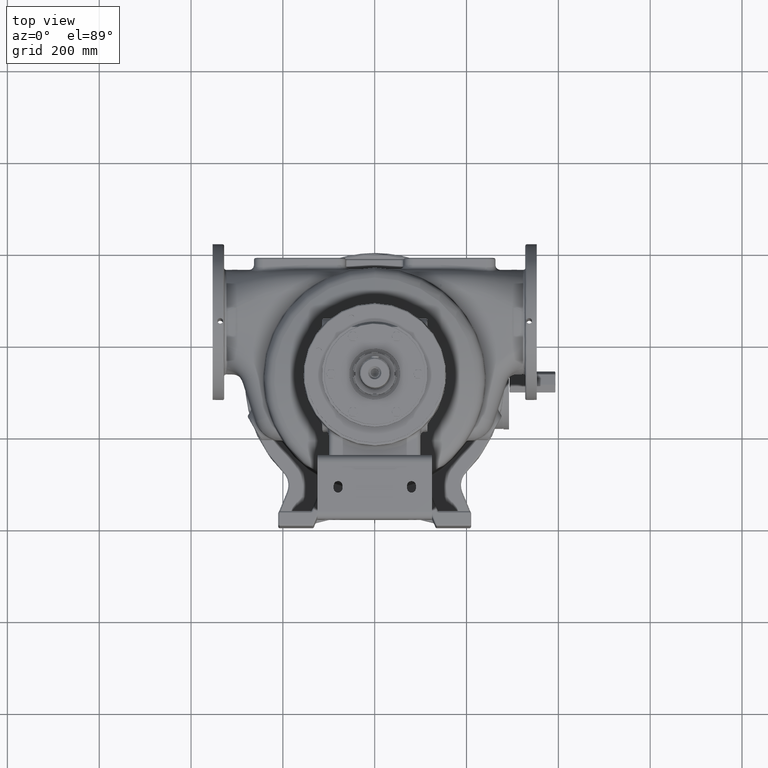
[diagram: clean part render]
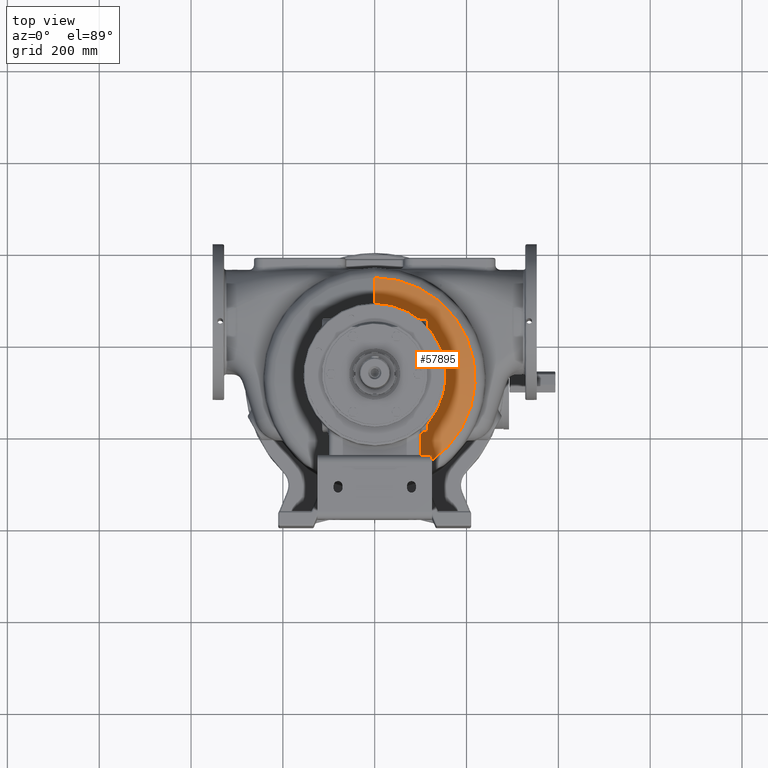
[diagram: same view with one face highlighted and labeled with its STEP entity id]
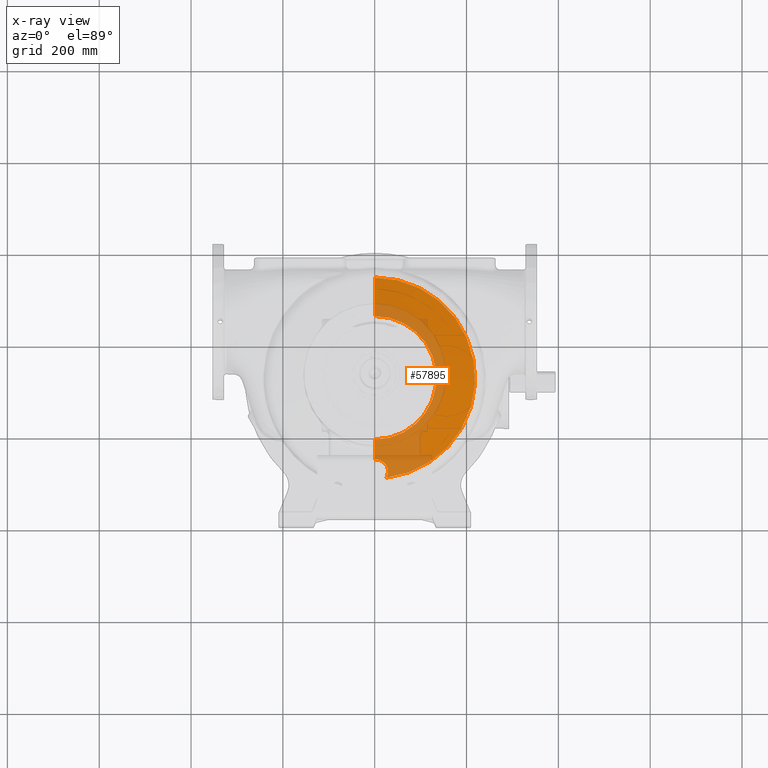
[diagram: x-ray of the same camera — body ghosted, the highlighted face saturated]
A machine part, top view. The second image highlights one B-rep face of the part: STEP entity #57895.
The next image is the same camera in x-ray: the body ghosted, the highlighted face saturated — about 37% of this face is hidden behind the body in this view.
In plain terms, the highlighted conical surface has half-angle 75 deg.
Its self-contained STEP definition (entity closure, byte-faithful):
#11260=DIRECTION('',(0.E0,9.659258262891E-1,-2.588190451025E-1));
#11261=VECTOR('',#11260,8.729188445828E1);
#11262=CARTESIAN_POINT('',(1.646507359578E-14,4.564470857294E2,
2.120507673300E2));
#11263=LINE('',#11262,#11261);
#11328=CARTESIAN_POINT('',(-1.731453073530E-14,1.444701233096E2,
2.005067682840E2));
#11658=CARTESIAN_POINT('',(2.810997701817E1,1.245521483103E2,1.946362967002E2));
#11659=CARTESIAN_POINT('',(2.816215611399E1,1.243258138949E2,1.945742853824E2));
#11660=CARTESIAN_POINT('',(2.826148405844E1,1.238702588997E2,1.944496855246E2));
#11661=CARTESIAN_POINT('',(2.839504318283E1,1.231780067052E2,1.942610012095E2));
#11662=CARTESIAN_POINT('',(2.851266935511E1,1.224772835148E2,1.940706726164E2));
#11663=CARTESIAN_POINT('',(2.861391779855E1,1.217682838686E2,1.938787694072E2));
#11664=CARTESIAN_POINT('',(2.869831725779E1,1.210512998891E2,1.936853869231E2));
#11665=CARTESIAN_POINT('',(2.876539155429E1,1.203268066671E2,1.934906679599E2));
#11666=CARTESIAN_POINT('',(2.881468443431E1,1.195947644721E2,1.932946166448E2));
#11667=CARTESIAN_POINT('',(2.884557499275E1,1.188590041815E2,1.930982686764E2));
#11668=CARTESIAN_POINT('',(2.885784965711E1,1.181234556358E2,1.929026693804E2));
#11669=CARTESIAN_POINT('',(2.885156002537E1,1.173880381777E2,1.927077889896E2));
#11670=CARTESIAN_POINT('',(2.882671986671E1,1.166533392602E2,1.925137752195E2));
#11671=CARTESIAN_POINT('',(2.878337209586E1,1.159198641383E2,1.923207517696E2));
#11672=CARTESIAN_POINT('',(2.872157074858E1,1.151881102745E2,1.921288387879E2));
#11673=CARTESIAN_POINT('',(2.864138618156E1,1.144585785048E2,1.919381556989E2));
#11674=CARTESIAN_POINT('',(2.854290290409E1,1.137317614340E2,1.917488182653E2));
#11675=CARTESIAN_POINT('',(2.842621989188E1,1.130081479333E2,1.915609398318E2));
#11676=CARTESIAN_POINT('',(2.829145002741E1,1.122882208970E2,1.913746308147E2));
#11677=CARTESIAN_POINT('',(2.813871979594E1,1.115724573489E2,1.911899988061E2));
#11678=CARTESIAN_POINT('',(2.796816896023E1,1.108613281383E2,1.910071485715E2));
#11679=CARTESIAN_POINT('',(2.777994996583E1,1.101552967317E2,1.908261818174E2));
#11680=CARTESIAN_POINT('',(2.757422761074E1,1.094548193962E2,1.906471973184E2));
#11681=CARTESIAN_POINT('',(2.735117886068E1,1.087603455335E2,1.904702910808E2));
#11682=CARTESIAN_POINT('',(2.711099248728E1,1.080723173904E2,1.902955563450E2));
#11683=CARTESIAN_POINT('',(2.685386848885E1,1.073911687472E2,1.901230833266E2));
#11684=CARTESIAN_POINT('',(2.658001676552E1,1.067173241029E2,1.899529591036E2));
#11685=CARTESIAN_POINT('',(2.628966433006E1,1.060512115921E2,1.897852709020E2));
#11686=CARTESIAN_POINT('',(2.598301683322E1,1.053931897448E2,1.896200878719E2));
#11687=CARTESIAN_POINT('',(2.576794805242E1,1.049602984700E2,1.895117209825E2));
#11688=CARTESIAN_POINT('',(2.565774789250E1,1.047452701266E2,1.894579651491E2));
#11690=CARTESIAN_POINT('',(-1.731453073530E-14,1.444701233096E2,
2.005067682840E2));
#11691=CARTESIAN_POINT('',(2.463264900775E-1,1.444701233075E2,
2.005067682748E2));
#11692=CARTESIAN_POINT('',(7.384862995598E-1,1.444649504784E2,
2.005051076529E2));
#11693=CARTESIAN_POINT('',(1.476022196171E0,1.444416989828E2,2.004976445638E2));
#11694=CARTESIAN_POINT('',(2.211400336997E0,1.444030222061E2,2.004852348573E2));
#11695=CARTESIAN_POINT('',(2.943714541559E0,1.443490336732E2,2.004679215565E2));
#11696=CARTESIAN_POINT('',(3.671993423622E0,1.442798850471E2,2.004457623655E2));
#11697=CARTESIAN_POINT('',(4.395345192762E0,1.441957647028E2,2.004188290156E2));
#11698=CARTESIAN_POINT('',(5.112942706228E0,1.440968909667E2,2.003872048768E2));
#11699=CARTESIAN_POINT('',(5.824032210296E0,1.439835073081E2,2.003509831747E2));
#11700=CARTESIAN_POINT('',(6.527937439274E0,1.438558762541E2,2.003102647899E2));
#11701=CARTESIAN_POINT('',(7.224059804929E0,1.437142739403E2,2.002651562642E2));
#11702=CARTESIAN_POINT('',(7.911877296554E0,1.435589847707E2,2.002157678539E2));
#11703=CARTESIAN_POINT('',(8.590941167386E0,1.433902966276E2,2.001622117784E2));
#11704=CARTESIAN_POINT('',(9.260871450676E0,1.432084965990E2,2.001046006579E2));
#11705=CARTESIAN_POINT('',(9.921351457030E0,1.430138673165E2,2.000430461724E2));
#11706=CARTESIAN_POINT('',(1.057212173507E1,1.428066838817E2,1.999776579361E2));
#11707=CARTESIAN_POINT('',(1.121297378836E1,1.425872113551E2,1.999085425781E2));
#11708=CARTESIAN_POINT('',(1.184374377713E1,1.423557027649E2,1.998358030141E2));
#11709=CARTESIAN_POINT('',(1.246430645025E1,1.421123975563E2,1.997595378820E2));
#11710=CARTESIAN_POINT('',(1.307456933031E1,1.418575204524E2,1.996798411294E2));
#11711=CARTESIAN_POINT('',(1.367446728651E1,1.415912806551E2,1.995968017276E2));
#11712=CARTESIAN_POINT('',(1.426395754327E1,1.413138713225E2,1.995105034889E2));
#11713=CARTESIAN_POINT('',(1.484301513609E1,1.410254692735E2,1.994210249702E2));
#11714=CARTESIAN_POINT('',(1.541162875497E1,1.407262349020E2,1.993284394533E2));
#11715=CARTESIAN_POINT('',(1.596979701505E1,1.404163122393E2,1.992328149817E2));
#11716=CARTESIAN_POINT('',(1.651752507655E1,1.400958291574E2,1.991342144488E2));
#11717=CARTESIAN_POINT('',(1.705482158769E1,1.397648976945E2,1.990326957303E2));
#11718=CARTESIAN_POINT('',(1.758169595031E1,1.394236144609E2,1.989283118461E2));
#11719=CARTESIAN_POINT('',(1.809815581903E1,1.390720611492E2,1.988211111570E2));
#11720=CARTESIAN_POINT('',(1.860420483957E1,1.387103051165E2,1.987111375858E2));
#11721=CARTESIAN_POINT('',(1.909984063372E1,1.383384000068E2,1.985984308516E2));
#11722=CARTESIAN_POINT('',(1.958505284272E1,1.379563865208E2,1.984830267484E2));
#11723=CARTESIAN_POINT('',(2.005982144506E1,1.375642931735E2,1.983649574193E2));
#11724=CARTESIAN_POINT('',(2.052411508320E1,1.371621372120E2,1.982442516764E2));
#11725=CARTESIAN_POINT('',(2.097788962720E1,1.367499255133E2,1.981209353122E2));
#11726=CARTESIAN_POINT('',(2.142108673997E1,1.363276556403E2,1.979950314548E2));
#11727=CARTESIAN_POINT('',(2.185363258129E1,1.358953169452E2,1.978665609320E2));
#11728=CARTESIAN_POINT('',(2.227543657705E1,1.354528917793E2,1.977355426623E2));
#11729=CARTESIAN_POINT('',(2.268639027291E1,1.350003567973E2,1.976019940671E2));
#11730=CARTESIAN_POINT('',(2.308636627252E1,1.345376843594E2,1.974659315045E2));
#11731=CARTESIAN_POINT('',(2.347521725016E1,1.340648440499E2,1.973273707299E2));
#11732=CARTESIAN_POINT('',(2.385277505233E1,1.335818043054E2,1.971863273789E2));
#11733=CARTESIAN_POINT('',(2.421884986330E1,1.330885342115E2,1.970428174893E2));
#11734=CARTESIAN_POINT('',(2.457322954663E1,1.325850053020E2,1.968968580137E2));
#11735=CARTESIAN_POINT('',(2.491567888542E1,1.320711938819E2,1.967484674693E2));
#11736=CARTESIAN_POINT('',(2.524593956890E1,1.315470822977E2,1.965976662761E2));
#11737=CARTESIAN_POINT('',(2.556372839516E1,1.310126642396E2,1.964444782240E2));
#11738=CARTESIAN_POINT('',(2.586874184034E1,1.304679372526E2,1.962889283060E2));
#11739=CARTESIAN_POINT('',(2.616064100425E1,1.299129379558E2,1.961310525971E2));
#11740=CARTESIAN_POINT('',(2.643909847115E1,1.293476406631E2,1.959708696020E2));
#11741=CARTESIAN_POINT('',(2.670365837460E1,1.287722833811E2,1.958084718856E2));
#11742=CARTESIAN_POINT('',(2.695414629964E1,1.281864032002E2,1.956437549184E2));
#11743=CARTESIAN_POINT('',(2.718922015426E1,1.275923421671E2,1.954774009606E2));
#11744=CARTESIAN_POINT('',(2.740752293784E1,1.269934171125E2,1.953103512235E2));
#11745=CARTESIAN_POINT('',(2.760914299433E1,1.263895714530E2,1.951425970441E2));
#11746=CARTESIAN_POINT('',(2.779395170843E1,1.257812582656E2,1.949742717183E2));
#11747=CARTESIAN_POINT('',(2.796189189831E1,1.251687502904E2,1.948054567205E2));
#11748=CARTESIAN_POINT('',(2.806249801348E1,1.247580949206E2,1.946927221782E2));
#11749=CARTESIAN_POINT('',(2.810997701817E1,1.245521483103E2,1.946362967002E2));
#11751=DIRECTION('',(0.E0,9.659258262874E-1,2.588190451087E-1));
#11752=VECTOR('',#11751,4.460258726756E1);
#11753=CARTESIAN_POINT('',(-1.731453073530E-14,1.444701233096E2,
2.005067682840E2));
#11754=LINE('',#11753,#11752);
#11755=CARTESIAN_POINT('',(0.E0,3.22E2,2.120507673300E2));
#11756=DIRECTION('',(0.E0,0.E0,-1.E0));
#11757=DIRECTION('',(0.E0,1.E0,0.E0));
#11758=AXIS2_PLACEMENT_3D('',#11755,#11756,#11757);
#11760=CARTESIAN_POINT('',(0.E0,3.22E2,1.894579651493E2));
#11761=DIRECTION('',(0.E0,0.E0,1.E0));
#11762=DIRECTION('',(1.172847492344E-1,-9.930983272552E-1,0.E0));
#11763=AXIS2_PLACEMENT_3D('',#11760,#11761,#11762);
#34660=CARTESIAN_POINT('',(2.679093320744E-14,5.407645713531E2,
1.894579651493E2));
#34662=VERTEX_POINT('',#34660);
#34668=CARTESIAN_POINT('',(1.646501931932E-14,4.564470857294E2,
2.120507673300E2));
#34669=CARTESIAN_POINT('',(0.E0,1.875529142706E2,2.120507673300E2));
#34670=VERTEX_POINT('',#34668);
#34671=VERTEX_POINT('',#34669);
#34675=VERTEX_POINT('',#11658);
#34676=VERTEX_POINT('',#11688);
#35377=VERTEX_POINT('',#11328);
#57881=CARTESIAN_POINT('',(0.E0,3.22E2,2.007543662396E2));
#57882=DIRECTION('',(0.E0,0.E0,-1.E0));
#57883=DIRECTION('',(0.E0,-1.E0,0.E0));
#57884=AXIS2_PLACEMENT_3D('',#57881,#57882,#57883);
#57885=CONICAL_SURFACE('',#57884,1.766058285412E2,7.5E1);
#57886=ORIENTED_EDGE('',*,*,#57310,.F.);
#57887=ORIENTED_EDGE('',*,*,#57574,.F.);
#57888=ORIENTED_EDGE('',*,*,#56792,.T.);
#57889=ORIENTED_EDGE('',*,*,#56760,.F.);
#57890=ORIENTED_EDGE('',*,*,#56789,.T.);
#57892=ORIENTED_EDGE('',*,*,#57891,.F.);
#57893=EDGE_LOOP('',(#57886,#57887,#57888,#57889,#57890,#57892));
#57894=FACE_OUTER_BOUND('',#57893,.F.);
#57895=ADVANCED_FACE('',(#57894),#57885,.T.);
#11689=B_SPLINE_CURVE_WITH_KNOTS('',3,(#11658,#11659,#11660,#11661,#11662,
#11663,#11664,#11665,#11666,#11667,#11668,#11669,#11670,#11671,#11672,#11673,
#11674,#11675,#11676,#11677,#11678,#11679,#11680,#11681,#11682,#11683,#11684,
#11685,#11686,#11687,#11688),.UNSPECIFIED.,.F.,.F.,(4,1,1,1,1,1,1,1,1,1,1,1,1,1,
1,1,1,1,1,1,1,1,1,1,1,1,1,1,4),(0.E0,3.571428571429E-2,7.142857142857E-2,
1.071428571429E-1,1.428571428571E-1,1.785714285714E-1,2.142857142857E-1,2.5E-1,
2.857142857143E-1,3.214285714286E-1,3.571428571429E-1,3.928571428571E-1,
4.285714285714E-1,4.642857142857E-1,5.E-1,5.357142857143E-1,5.714285714286E-1,
6.071428571429E-1,6.428571428571E-1,6.785714285714E-1,7.142857142857E-1,7.5E-1,
7.857142857143E-1,8.214285714286E-1,8.571428571429E-1,8.928571428571E-1,
9.285714285714E-1,9.642857142857E-1,1.E0),.UNSPECIFIED.);
#11750=B_SPLINE_CURVE_WITH_KNOTS('',3,(#11690,#11691,#11692,#11693,#11694,
#11695,#11696,#11697,#11698,#11699,#11700,#11701,#11702,#11703,#11704,#11705,
#11706,#11707,#11708,#11709,#11710,#11711,#11712,#11713,#11714,#11715,#11716,
#11717,#11718,#11719,#11720,#11721,#11722,#11723,#11724,#11725,#11726,#11727,
#11728,#11729,#11730,#11731,#11732,#11733,#11734,#11735,#11736,#11737,#11738,
#11739,#11740,#11741,#11742,#11743,#11744,#11745,#11746,#11747,#11748,#11749),
.UNSPECIFIED.,.F.,.F.,(4,1,1,1,1,1,1,1,1,1,1,1,1,1,1,1,1,1,1,1,1,1,1,1,1,1,1,1,
1,1,1,1,1,1,1,1,1,1,1,1,1,1,1,1,1,1,1,1,1,1,1,1,1,1,1,1,1,4),(0.E0,
1.754385964912E-2,3.508771929825E-2,5.263157894737E-2,7.017543859649E-2,
8.771929824561E-2,1.052631578947E-1,1.228070175439E-1,1.403508771930E-1,
1.578947368421E-1,1.754385964912E-1,1.929824561404E-1,2.105263157895E-1,
2.280701754386E-1,2.456140350877E-1,2.631578947368E-1,2.807017543860E-1,
2.982456140351E-1,3.157894736842E-1,3.333333333333E-1,3.508771929825E-1,
3.684210526316E-1,3.859649122807E-1,4.035087719298E-1,4.210526315789E-1,
4.385964912281E-1,4.561403508772E-1,4.736842105263E-1,4.912280701754E-1,
5.087719298246E-1,5.263157894737E-1,5.438596491228E-1,5.614035087719E-1,
5.789473684211E-1,5.964912280702E-1,6.140350877193E-1,6.315789473684E-1,
6.491228070175E-1,6.666666666667E-1,6.842105263158E-1,7.017543859649E-1,
7.192982456140E-1,7.368421052632E-1,7.543859649123E-1,7.719298245614E-1,
7.894736842105E-1,8.070175438596E-1,8.245614035088E-1,8.421052631579E-1,
8.596491228070E-1,8.771929824561E-1,8.947368421053E-1,9.122807017544E-1,
9.298245614035E-1,9.473684210526E-1,9.649122807018E-1,9.824561403509E-1,1.E0),
.UNSPECIFIED.);
#11759=CIRCLE('',#11758,1.344470857294E2);
#11764=CIRCLE('',#11763,2.187645713531E2);
#56760=EDGE_CURVE('',#34670,#34671,#11759,.T.);
#56789=EDGE_CURVE('',#34670,#34662,#11263,.T.);
#56792=EDGE_CURVE('',#35377,#34671,#11754,.T.);
#57310=EDGE_CURVE('',#34675,#34676,#11689,.T.);
#57574=EDGE_CURVE('',#35377,#34675,#11750,.T.);
#57891=EDGE_CURVE('',#34676,#34662,#11764,.T.);